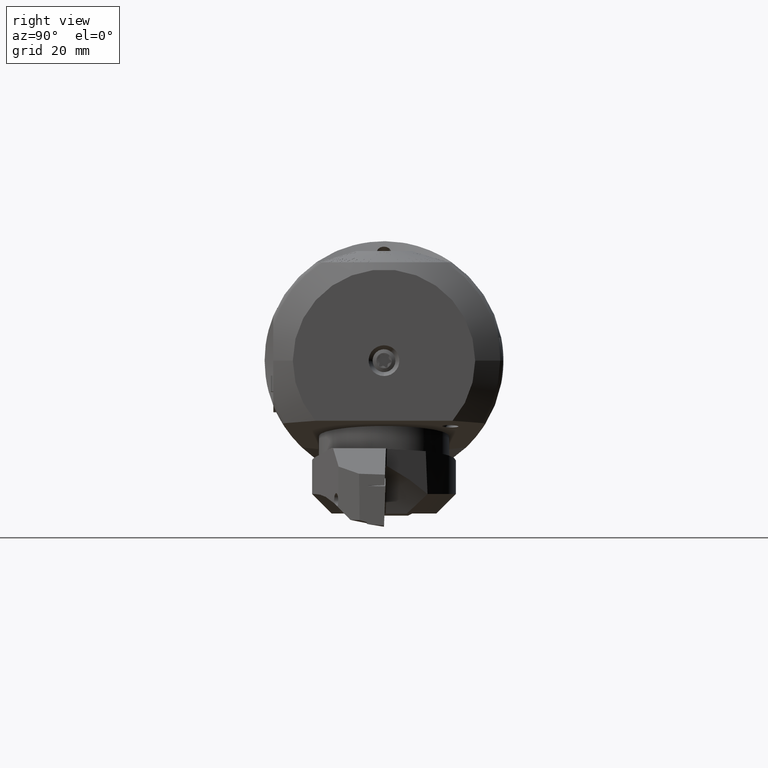
[diagram: clean part render]
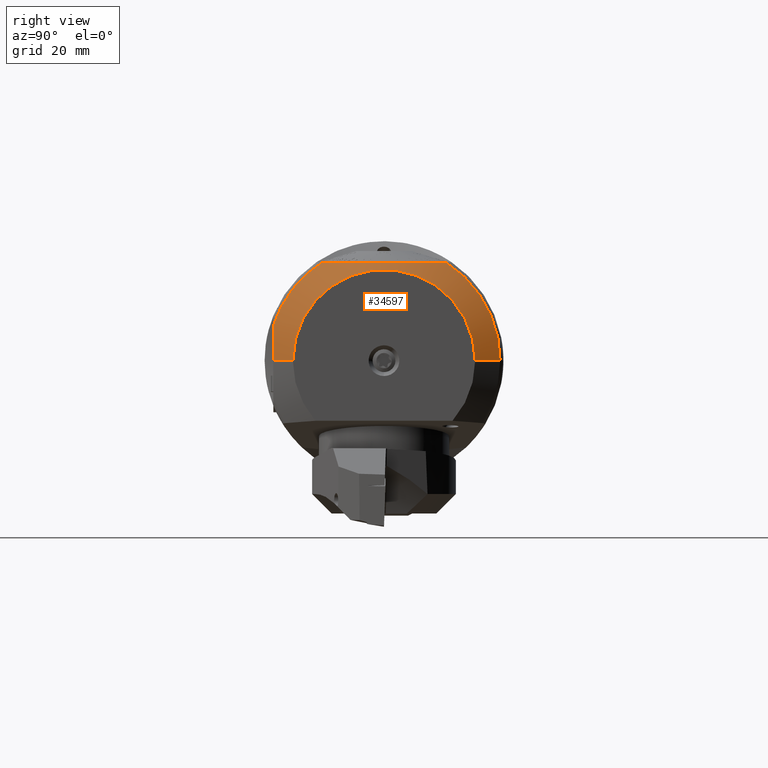
[diagram: same view with one face highlighted and labeled with its STEP entity id]
A machine part, right view. The second image highlights one B-rep face of the part: STEP entity #34597.
In plain terms, the highlighted conical surface has half-angle 60 deg.
Its self-contained STEP definition (entity closure, byte-faithful):
#588 = CARTESIAN_POINT ( 'NONE',  ( 107.6802359521596500, -25.49999999999999300, 8.081614937622289200 ) ) ;
#620 = CARTESIAN_POINT ( 'NONE',  ( 108.3901555843959300, 11.92045130077169200, 22.65000000000000600 ) ) ;
#855 = DIRECTION ( 'NONE',  ( 0.0000000000000000000, -1.000000000000000000, 0.0000000000000000000 ) ) ;
#1227 = ORIENTED_EDGE ( 'NONE', *, *, #36194, .T. ) ;
#1251 = EDGE_CURVE ( 'NONE', #36310, #38296, #5437, .T. ) ;
#2873 = AXIS2_PLACEMENT_3D ( 'NONE', #26294, #8295, #29321 ) ;
#3580 = CARTESIAN_POINT ( 'NONE',  ( 108.0802812297529300, -25.49999999999999300, 5.399244710965283500 ) ) ;
#3622 = CARTESIAN_POINT ( 'NONE',  ( 109.6087216625422500, 6.022823554488874200, 22.64999999999998800 ) ) ;
#3720 = LINE ( 'NONE', #34938, #34716 ) ;
#3754 = CARTESIAN_POINT ( 'NONE',  ( 107.6802359521596500, 14.23165485809715800, 22.64999999999999500 ) ) ;
#5437 = LINE ( 'NONE', #17061, #21376 ) ;
#5884 = EDGE_CURVE ( 'NONE', #36310, #11553, #10270, .T. ) ;
#6053 = CIRCLE ( 'NONE', #26559, 26.75000000000000000 ) ;
#6578 = CARTESIAN_POINT ( 'NONE',  ( 108.3400211130002200, -25.50000000000000000, 2.694557567119661500 ) ) ;
#6617 = CARTESIAN_POINT ( 'NONE',  ( 109.9366368040673300, 3.013501036554486800, 22.64999999999998800 ) ) ;
#6787 = EDGE_LOOP ( 'NONE', ( #38033, #8439, #29872, #12303, #1227, #23652, #25998 ) ) ;
#7128 = CARTESIAN_POINT ( 'NONE',  ( 107.6802359521596500, 1.322726650432315400E-014, 0.0000000000000000000 ) ) ;
#8076 = EDGE_CURVE ( 'NONE', #8698, #18266, #14607, .T. ) ;
#8295 = DIRECTION ( 'NONE',  ( 1.000000000000000000, 1.217090944573382400E-016, -0.0000000000000000000 ) ) ;
#8439 = ORIENTED_EDGE ( 'NONE', *, *, #1251, .T. ) ;
#8698 = VERTEX_POINT ( 'NONE', #28329 ) ;
#9593 = CARTESIAN_POINT ( 'NONE',  ( 111.0000000000000000, 21.00000000000000700, 2.923844232964305600E-015 ) ) ;
#9596 = CARTESIAN_POINT ( 'NONE',  ( 108.4019237886466700, -25.49999999999999300, -1.615814325833335800E-021 ) ) ;
#9630 = CARTESIAN_POINT ( 'NONE',  ( 110.0341469756063900, 1.186566028730965800, 22.64999999999998800 ) ) ;
#10049 = EDGE_CURVE ( 'NONE', #38296, #33825, #11005, .T. ) ;
#10129 = DIRECTION ( 'NONE',  ( 0.0000000000000000000, 1.000000000000000000, 0.0000000000000000000 ) ) ;
#10270 = CIRCLE ( 'NONE', #2873, 20.99999999999999300 ) ;
#11005 = CIRCLE ( 'NONE', #21808, 26.75000000000000000 ) ;
#11553 = VERTEX_POINT ( 'NONE', #32512 ) ;
#12303 = ORIENTED_EDGE ( 'NONE', *, *, #18900, .T. ) ;
#12662 = CARTESIAN_POINT ( 'NONE',  ( 110.0449085256695100, -2.483163849841018700, 22.64999999999999900 ) ) ;
#13946 = DIRECTION ( 'NONE',  ( -0.5000000000000007800, -0.8660254037844381500, 0.0000000000000000000 ) ) ;
#14607 = B_SPLINE_CURVE_WITH_KNOTS ( 'NONE', 3,
 ( #588, #18510, #21543, #3580, #24532, #6578, #27573, #9596 ),
 .UNSPECIFIED., .F., .F.,
 ( 4, 2, 2, 4 ),
 ( 0.02026044810021119400, 0.02227416551051034800, 0.02428788292080950200, 0.02831531774140779900 ),
 .UNSPECIFIED. ) ;
#15244 = CARTESIAN_POINT ( 'NONE',  ( 107.6802359521596500, 1.322726650432315400E-014, 0.0000000000000000000 ) ) ;
#15277 = CARTESIAN_POINT ( 'NONE',  ( 107.6802359521596500, -14.23165485809713200, 22.64999999999999500 ) ) ;
#15674 = CARTESIAN_POINT ( 'NONE',  ( 108.9800456875854200, -9.603149515909056100, 22.65000000000000200 ) ) ;
#15856 = B_SPLINE_CURVE_WITH_KNOTS ( 'NONE', 3,
 ( #36562, #620, #21587, #3622, #24568, #6617, #27621, #9630, #30649, #12662, #33656, #15674, #36708, #18690 ),
 .UNSPECIFIED., .F., .F.,
 ( 4, 2, 2, 2, 2, 2, 4 ),
 ( 0.07792373181731270000, 0.08516880881320458600, 0.08879134731115052900, 0.09060261656012350000, 0.09241388580909647200, 0.09965896280498837100, 0.1069040398008802600 ),
 .UNSPECIFIED. ) ;
#15923 = CARTESIAN_POINT ( 'NONE',  ( 111.0000000000000000, 1.366094737331735600E-014, 0.0000000000000000000 ) ) ;
#16963 = CONICAL_SURFACE ( 'NONE', #36568, 20.99999999999999300, 1.047197551196596700 ) ;
#17061 = CARTESIAN_POINT ( 'NONE',  ( 111.0000000000000000, 21.00000000000000700, 2.571758278209440900E-015 ) ) ;
#17193 = VERTEX_POINT ( 'NONE', #15277 ) ;
#18190 = DIRECTION ( 'NONE',  ( -0.5000000000000010000, 0.8660254037844380400, 1.060575238724906300E-016 ) ) ;
#18259 = DIRECTION ( 'NONE',  ( 0.0000000000000000000, 1.000000000000000000, 0.0000000000000000000 ) ) ;
#18266 = VERTEX_POINT ( 'NONE', #29916 ) ;
#18510 = CARTESIAN_POINT ( 'NONE',  ( 107.7963678912194600, -25.50000000000000400, 7.415823911284585200 ) ) ;
#18690 = CARTESIAN_POINT ( 'NONE',  ( 107.6802359521596500, -14.23165485809713200, 22.64999999999999500 ) ) ;
#18900 = EDGE_CURVE ( 'NONE', #33825, #17193, #15856, .T. ) ;
#21376 = VECTOR ( 'NONE', #18190, 1000.000000000000000 ) ;
#21543 = CARTESIAN_POINT ( 'NONE',  ( 107.9001010523560600, -25.49999999999999300, 6.746339906050236500 ) ) ;
#21587 = CARTESIAN_POINT ( 'NONE',  ( 108.9849803388653800, 9.584496394280337800, 22.64999999999999500 ) ) ;
#21802 = DIRECTION ( 'NONE',  ( -1.000000000000000000, -1.217090944573382400E-016, 0.0000000000000000000 ) ) ;
#21808 = AXIS2_PLACEMENT_3D ( 'NONE', #7128, #28140, #10129 ) ;
#23652 = ORIENTED_EDGE ( 'NONE', *, *, #8076, .T. ) ;
#24532 = CARTESIAN_POINT ( 'NONE',  ( 108.1566523301195600, -25.49999999999999300, 4.721406311867720100 ) ) ;
#24568 = CARTESIAN_POINT ( 'NONE',  ( 109.7715989563962200, 4.825914102804783400, 22.64999999999999900 ) ) ;
#25998 = ORIENTED_EDGE ( 'NONE', *, *, #37622, .F. ) ;
#26294 = CARTESIAN_POINT ( 'NONE',  ( 111.0000000000000000, 1.366094737331735600E-014, 0.0000000000000000000 ) ) ;
#26559 = AXIS2_PLACEMENT_3D ( 'NONE', #15244, #36261, #18259 ) ;
#26802 = FACE_OUTER_BOUND ( 'NONE', #6787, .T. ) ;
#27573 = CARTESIAN_POINT ( 'NONE',  ( 108.4019237886466800, -25.49999999999999300, 1.345938366760755200 ) ) ;
#27621 = CARTESIAN_POINT ( 'NONE',  ( 109.9784549309527800, 2.406525850508550900, 22.64999999999999100 ) ) ;
#28140 = DIRECTION ( 'NONE',  ( 1.000000000000000000, 1.217090944573382400E-016, -0.0000000000000000000 ) ) ;
#28329 = CARTESIAN_POINT ( 'NONE',  ( 107.6802359521596500, -25.49999999999999300, 8.081614937622289200 ) ) ;
#29321 = DIRECTION ( 'NONE',  ( 0.0000000000000000000, 1.000000000000000000, 0.0000000000000000000 ) ) ;
#29872 = ORIENTED_EDGE ( 'NONE', *, *, #10049, .T. ) ;
#29916 = CARTESIAN_POINT ( 'NONE',  ( 108.4019237886466700, -25.49999999999999300, -1.615814325833335800E-021 ) ) ;
#30649 = CARTESIAN_POINT ( 'NONE',  ( 110.0479634193446300, 0.5717525654481862000, 22.64999999999999100 ) ) ;
#32512 = CARTESIAN_POINT ( 'NONE',  ( 111.0000000000000000, -20.99999999999998200, 0.0000000000000000000 ) ) ;
#33656 = CARTESIAN_POINT ( 'NONE',  ( 109.8103974905047300, -4.880616076873900000, 22.64999999999999500 ) ) ;
#33825 = VERTEX_POINT ( 'NONE', #3754 ) ;
#34597 = ADVANCED_FACE ( 'NONE', ( #26802 ), #16963, .T. ) ;
#34716 = VECTOR ( 'NONE', #13946, 1000.000000000000100 ) ;
#34938 = CARTESIAN_POINT ( 'NONE',  ( 111.0000000000000000, -20.99999999999998200, 0.0000000000000000000 ) ) ;
#35660 = CARTESIAN_POINT ( 'NONE',  ( 107.6802359521596500, 26.75000000000001800, 3.275930187719170300E-015 ) ) ;
#36194 = EDGE_CURVE ( 'NONE', #17193, #8698, #6053, .T. ) ;
#36261 = DIRECTION ( 'NONE',  ( 1.000000000000000000, 1.217090944573382400E-016, -0.0000000000000000000 ) ) ;
#36310 = VERTEX_POINT ( 'NONE', #9593 ) ;
#36562 = CARTESIAN_POINT ( 'NONE',  ( 107.6802359521596500, 14.23165485809715800, 22.64999999999999500 ) ) ;
#36568 = AXIS2_PLACEMENT_3D ( 'NONE', #15923, #21802, #855 ) ;
#36708 = CARTESIAN_POINT ( 'NONE',  ( 108.3875596314418500, -11.92890264572631800, 22.64999999999999500 ) ) ;
#37622 = EDGE_CURVE ( 'NONE', #11553, #18266, #3720, .T. ) ;
#38033 = ORIENTED_EDGE ( 'NONE', *, *, #5884, .F. ) ;
#38296 = VERTEX_POINT ( 'NONE', #35660 ) ;